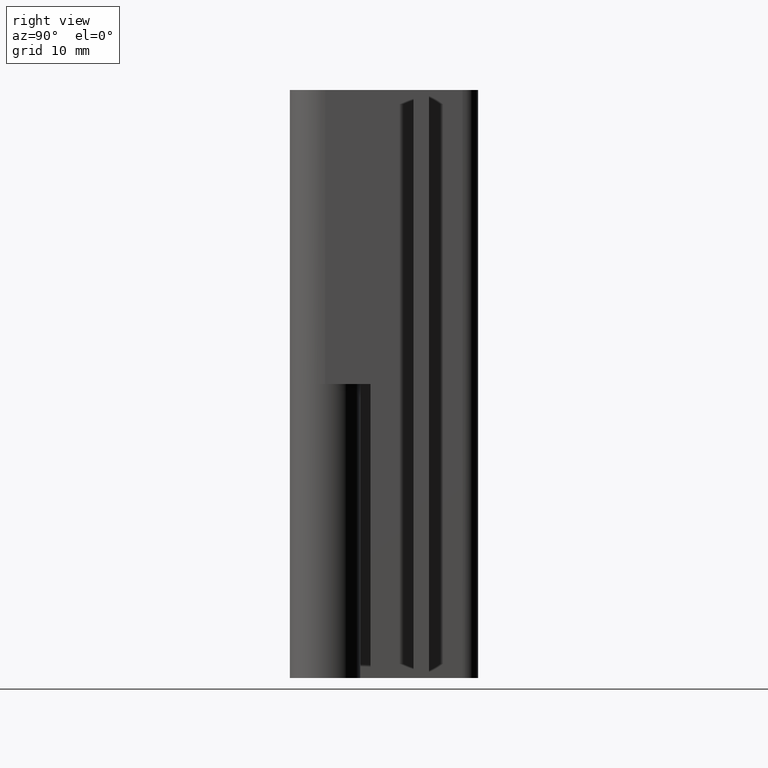
[diagram: clean part render]
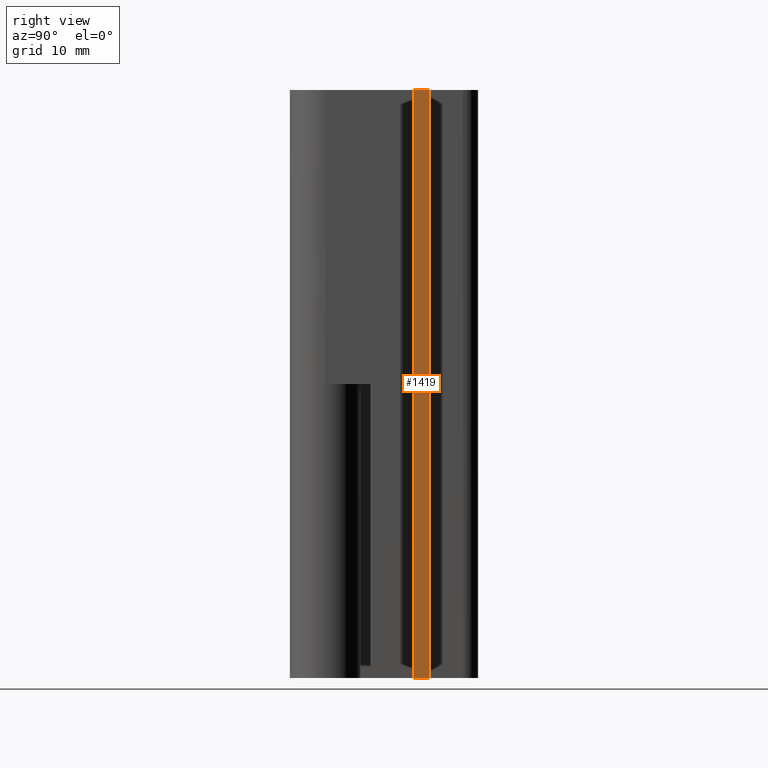
[diagram: same view with one face highlighted and labeled with its STEP entity id]
A machine part, right view. The second image highlights one B-rep face of the part: STEP entity #1419.
In plain terms, the highlighted face is a freeform B-spline surface patch.
Its self-contained STEP definition (entity closure, byte-faithful):
#1155=CARTESIAN_POINT('',(20.000008000000101,10.599998999999899,60.000008000000101));
#1156=VERTEX_POINT('',#1155);
#1226=CARTESIAN_POINT('',(20.000008000000101,8.999998999999999,60.000008000000101));
#1227=VERTEX_POINT('',#1226);
#1233=CARTESIAN_POINT('',(20.000008000000101,8.999998999999999,60.000008000000101));
#1234=CARTESIAN_POINT('',(20.000008000000101,10.599998999999899,60.000008000000101));
#1235=QUASI_UNIFORM_CURVE('',1,(#1233,#1234),.UNSPECIFIED.,.F.,.U.);
#1236=EDGE_CURVE('',#1227,#1156,#1235,.T.);
#1252=CARTESIAN_POINT('',(20.000008000000101,10.599998999999899,0.0));
#1253=VERTEX_POINT('',#1252);
#1259=CARTESIAN_POINT('',(20.000008000000101,8.999998999999999,0.0));
#1260=VERTEX_POINT('',#1259);
#1261=CARTESIAN_POINT('',(20.000008000000101,8.999998999999999,0.0));
#1262=CARTESIAN_POINT('',(20.000008000000101,10.599998999999899,0.0));
#1263=QUASI_UNIFORM_CURVE('',1,(#1261,#1262),.UNSPECIFIED.,.F.,.U.);
#1264=EDGE_CURVE('',#1260,#1253,#1263,.T.);
#1400=CARTESIAN_POINT('',(20.000008000000101,8.920079031011108,62.997008283308453));
#1401=CARTESIAN_POINT('',(20.000008000000101,8.920079031011108,-2.997001892633966));
#1402=CARTESIAN_POINT('',(20.000008000000101,10.679919398142230,62.997008283308453));
#1403=CARTESIAN_POINT('',(20.000008000000101,10.679919398142230,-2.997001892633966));
#1404=B_SPLINE_SURFACE_WITH_KNOTS('',1,1,((#1400,#1402),(#1401,#1403)),.UNSPECIFIED.,.F.,.F.,.U.,(2,2),(2,2),(0.0,65.994010175942421),(0.041708349484950,0.958291874032468),.UNSPECIFIED.);
#1405=ORIENTED_EDGE('',*,*,#1236,.F.);
#1406=CARTESIAN_POINT('',(20.000008000000101,8.999998999999999,0.0));
#1407=CARTESIAN_POINT('',(20.000008000000101,8.999998999999999,60.000008000000101));
#1408=QUASI_UNIFORM_CURVE('',1,(#1406,#1407),.UNSPECIFIED.,.F.,.U.);
#1409=EDGE_CURVE('',#1260,#1227,#1408,.T.);
#1410=ORIENTED_EDGE('',*,*,#1409,.F.);
#1411=ORIENTED_EDGE('',*,*,#1264,.T.);
#1412=CARTESIAN_POINT('',(20.000008000000101,10.599998999999899,0.0));
#1413=CARTESIAN_POINT('',(20.000008000000101,10.599998999999899,60.000008000000101));
#1414=QUASI_UNIFORM_CURVE('',1,(#1412,#1413),.UNSPECIFIED.,.F.,.U.);
#1415=EDGE_CURVE('',#1253,#1156,#1414,.T.);
#1416=ORIENTED_EDGE('',*,*,#1415,.T.);
#1417=EDGE_LOOP('',(#1405,#1410,#1411,#1416));
#1418=FACE_OUTER_BOUND('',#1417,.T.);
#1419=ADVANCED_FACE('',(#1418),#1404,.T.);